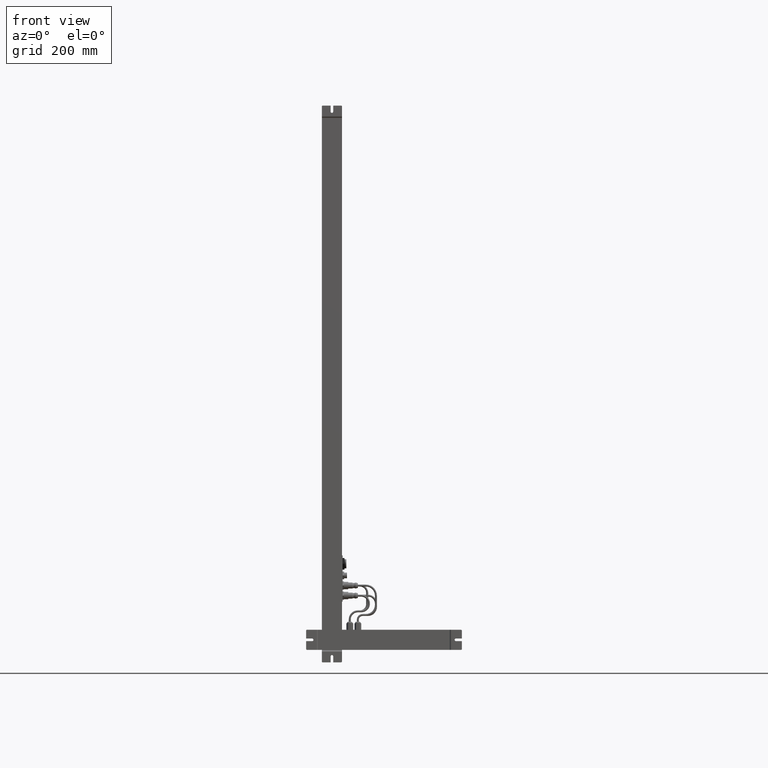
[diagram: clean part render]
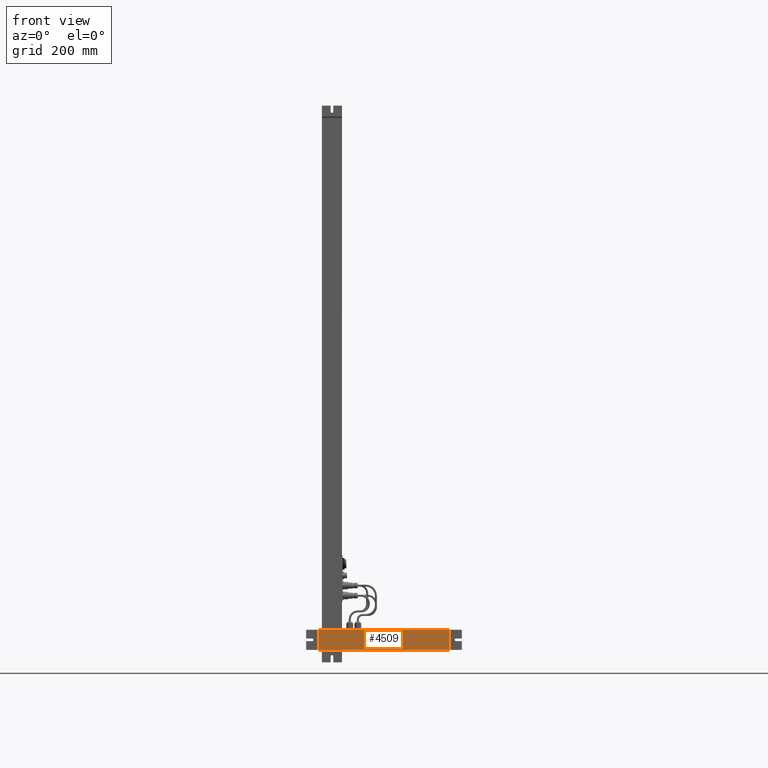
[diagram: same view with one face highlighted and labeled with its STEP entity id]
A machine part, front view. The second image highlights one B-rep face of the part: STEP entity #4509.
In plain terms, the highlighted planar face has unit normal (0, -1, 0).
Its self-contained STEP definition (entity closure, byte-faithful):
#4047=CARTESIAN_POINT('Line Origine',(50.,2.90282621546E-015,162.5)) ;
#4051=CARTESIAN_POINT('Vertex',(50.,0.,0.)) ;
#4053=CARTESIAN_POINT('Vertex',(50.,0.,325.)) ;
#4177=CARTESIAN_POINT('Vertex',(0.,0.,0.)) ;
#4204=CARTESIAN_POINT('Line Origine',(25.,0.,0.)) ;
#4382=CARTESIAN_POINT('Line Origine',(0.,0.,162.5)) ;
#4386=CARTESIAN_POINT('Vertex',(0.,0.,325.)) ;
#4482=CARTESIAN_POINT('Line Origine',(25.,0.,325.)) ;
#4498=CARTESIAN_POINT('Axis2P3D Location',(0.,0.,0.)) ;
#4048=DIRECTION('Vector Direction',(0.,0.,1.)) ;
#4205=DIRECTION('Vector Direction',(1.,0.,0.)) ;
#4383=DIRECTION('Vector Direction',(0.,0.,1.)) ;
#4483=DIRECTION('Vector Direction',(1.,0.,0.)) ;
#4499=DIRECTION('Axis2P3D Direction',(0.,-1.,0.)) ;
#4500=DIRECTION('Axis2P3D XDirection',(1.,0.,0.)) ;
#4501=AXIS2_PLACEMENT_3D('Plane Axis2P3D',#4498,#4499,#4500) ;
#4504=ORIENTED_EDGE('',*,*,#4388,.F.) ;
#4505=ORIENTED_EDGE('',*,*,#4208,.T.) ;
#4506=ORIENTED_EDGE('',*,*,#4055,.T.) ;
#4507=ORIENTED_EDGE('',*,*,#4486,.F.) ;
#4049=VECTOR('Line Direction',#4048,1.) ;
#4206=VECTOR('Line Direction',#4205,1.) ;
#4384=VECTOR('Line Direction',#4383,1.) ;
#4484=VECTOR('Line Direction',#4483,1.) ;
#4509=ADVANCED_FACE('PartBody',(#4508),#4502,.T.) ;
#4055=EDGE_CURVE('',#4052,#4054,#4050,.T.) ;
#4208=EDGE_CURVE('',#4178,#4052,#4207,.T.) ;
#4388=EDGE_CURVE('',#4178,#4387,#4385,.T.) ;
#4486=EDGE_CURVE('',#4387,#4054,#4485,.T.) ;
#4503=EDGE_LOOP('',(#4504,#4505,#4506,#4507)) ;
#4508=FACE_OUTER_BOUND('',#4503,.T.) ;
#4050=LINE('Line',#4047,#4049) ;
#4207=LINE('Line',#4204,#4206) ;
#4385=LINE('Line',#4382,#4384) ;
#4485=LINE('Line',#4482,#4484) ;
#4502=PLANE('Plane',#4501) ;
#4052=VERTEX_POINT('',#4051) ;
#4054=VERTEX_POINT('',#4053) ;
#4178=VERTEX_POINT('',#4177) ;
#4387=VERTEX_POINT('',#4386) ;